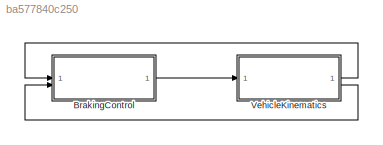
MODEL slx_ba577840c250
KIND model
CONFIG AbsTol = auto
CONFIG EnableMultiTasking = off
CONFIG FixedStep = 0.01
CONFIG MaxStep = auto
CONFIG MinStep = auto
CONFIG RelTol = 1e-3
CONFIG SampleTimeConstraint = Unconstrained
CONFIG SolverName = VariableStepAuto
CONFIG StartTime = 0.0
CONFIG StopTime = 5
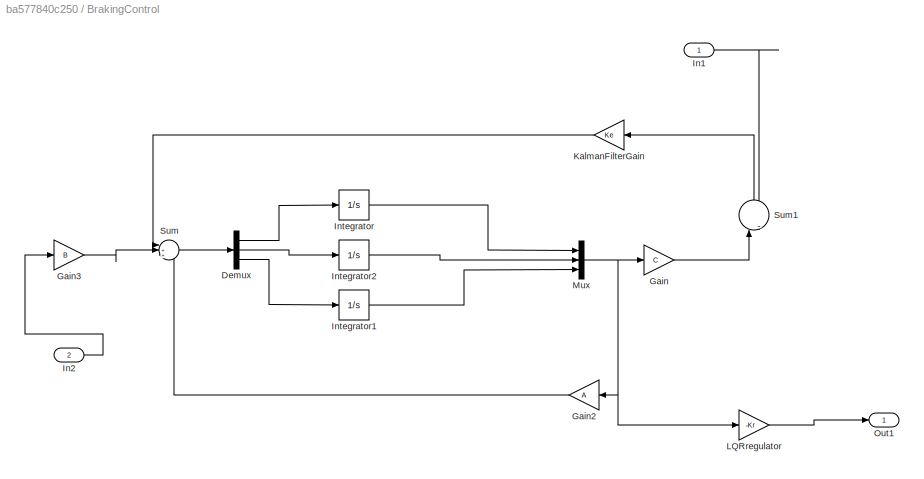
BLOCK [SubSystem] BrakingControl
BLOCK [Demux] BrakingControl/Demux
  Outputs = 3
BLOCK [Gain] BrakingControl/Gain
  Gain = C
  Multiplication = Matrix(K*u)
BLOCK [Gain] BrakingControl/Gain2
  Gain = A
  Multiplication = Matrix(K*u)
  NameLocation = top
BLOCK [Gain] BrakingControl/Gain3
  Gain = B
BLOCK [Inport] BrakingControl/In1
BLOCK [Inport] BrakingControl/In2
  Port = 2
BLOCK [Integrator] BrakingControl/Integrator
BLOCK [Integrator] BrakingControl/Integrator1
BLOCK [Integrator] BrakingControl/Integrator2
BLOCK [Gain] BrakingControl/KalmanFilterGain
  Gain = Ke
  NameLocation = top
BLOCK [Gain] BrakingControl/LQRregulator
  Gain = -Kr
  Multiplication = Matrix(K*u)
BLOCK [Mux] BrakingControl/Mux
  DisplayOption = bar
  Inputs = 3
BLOCK [Outport] BrakingControl/Out1
BLOCK [Sum] BrakingControl/Sum
  Inputs = |+++
BLOCK [Sum] BrakingControl/Sum1
  Inputs = |-+
  NameLocation = right
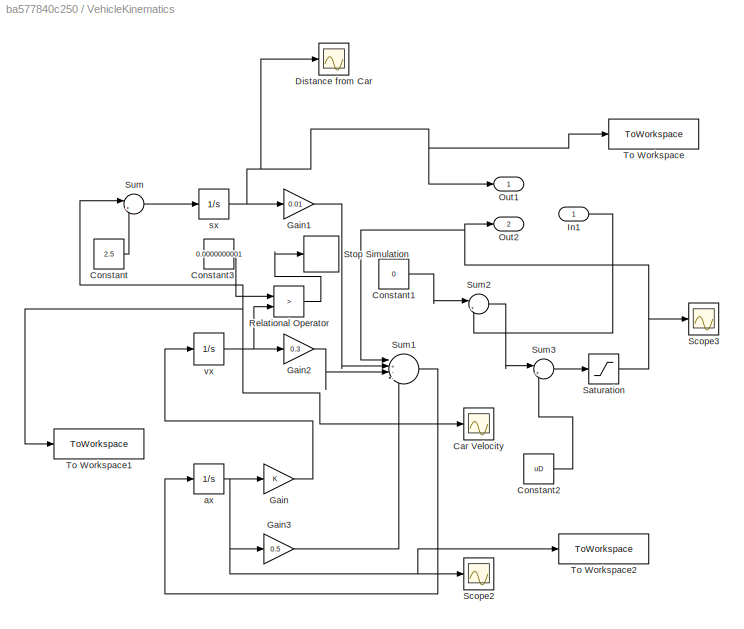
BLOCK [SubSystem] VehicleKinematics
BLOCK [Scope] VehicleKinematics/Car Velocity
  Floating = off
  NumInputPorts = 1
  ScopeSpecificationString = Simulink.scopes.TimeScopeBlockCfg('CurrentConfiguration', extmgr.ConfigurationSet(extmgr.Configuration('Core','General UI',true),extmgr.Configuration('Core','Source UI',true),extmgr.Configuration('Sources','WiredSimulink',true,'DataLoggingVariableName','ScopeData2'),extmgr.Configuration('Visuals','Time Domain',true,'SerializedDisplays',{struct('MinYLimReal','-6.25','MaxYLimReal','56.25','YLabelRea...<+1380ch>
BLOCK [Constant] VehicleKinematics/Constant
  Value = 2.5
BLOCK [Constant] VehicleKinematics/Constant1
  Value = 0
BLOCK [Constant] VehicleKinematics/Constant2
  Value = uD
BLOCK [Constant] VehicleKinematics/Constant3
  Value = 0.0000000001
BLOCK [Scope] VehicleKinematics/Distance from Car
  Floating = off
  NumInputPorts = 1
  ScopeSpecificationString = Simulink.scopes.TimeScopeBlockCfg('CurrentConfiguration', extmgr.ConfigurationSet(extmgr.Configuration('Core','General UI',true),extmgr.Configuration('Core','Source UI',true),extmgr.Configuration('Sources','WiredSimulink',true,'DataLoggingVariableName','ScopeData1'),extmgr.Configuration('Visuals','Time Domain',true,'SerializedDisplays',{struct('MinYLimReal','-50.59971','MaxYLimReal','17.39741','YL...<+1394ch>
BLOCK [Gain] VehicleKinematics/Gain
BLOCK [Gain] VehicleKinematics/Gain1
  Gain = 0.01
BLOCK [Gain] VehicleKinematics/Gain2
  Gain = 0.3
BLOCK [Gain] VehicleKinematics/Gain3
  Gain = 0.5
BLOCK [Inport] VehicleKinematics/In1
BLOCK [Outport] VehicleKinematics/Out1
BLOCK [Outport] VehicleKinematics/Out2
  Port = 2
BLOCK [RelationalOperator] VehicleKinematics/Relational Operator
  InputSameDT = off
  Operator = >
  OutDataTypeStr = boolean
  RndMeth = Simplest
BLOCK [Saturate] VehicleKinematics/Saturation
  LowerLimit = -150
  UpperLimit = 0
BLOCK [Scope] VehicleKinematics/Scope2
  Floating = off
  NumInputPorts = 1
  ScopeSpecificationString = Simulink.scopes.TimeScopeBlockCfg('CurrentConfiguration', extmgr.ConfigurationSet(extmgr.Configuration('Core','General UI',true),extmgr.Configuration('Core','Source UI',true),extmgr.Configuration('Sources','WiredSimulink',true,'DataLoggingVariableName','ScopeData3'),extmgr.Configuration('Visuals','Time Domain',true,'SerializedDisplays',{struct('MinYLimReal','-43.53248','MaxYLimReal','4.83694','YLa...<+1365ch>
BLOCK [Scope] VehicleKinematics/Scope3
  Floating = off
  NumInputPorts = 1
  ScopeSpecificationString = Simulink.scopes.TimeScopeBlockCfg('CurrentConfiguration', extmgr.ConfigurationSet(extmgr.Configuration('Core','General UI',true),extmgr.Configuration('Core','Source UI',true),extmgr.Configuration('Sources','WiredSimulink',true,'DataLoggingVariableName','ScopeData4'),extmgr.Configuration('Visuals','Time Domain',true,'SerializedDisplays',{struct('MinYLimReal','-168.75','MaxYLimReal','18.75','YLabelR...<+1395ch>
BLOCK [Stop] VehicleKinematics/Stop Simulation
BLOCK [Sum] VehicleKinematics/Sum
  Inputs = |+-
BLOCK [Sum] VehicleKinematics/Sum1
  Inputs = |+---
BLOCK [Sum] VehicleKinematics/Sum2
  Inputs = |++
BLOCK [Sum] VehicleKinematics/Sum3
  Inputs = |++
BLOCK [ToWorkspace] VehicleKinematics/To Workspace
  FixptAsFi = on
  MaxDataPoints = inf
  SampleTime = -1
  SaveFormat = Timeseries
  VariableName = sx1
BLOCK [ToWorkspace] VehicleKinematics/To Workspace1
  FixptAsFi = on
  MaxDataPoints = inf
  SampleTime = -1
  SaveFormat = Timeseries
  VariableName = vx1
BLOCK [ToWorkspace] VehicleKinematics/To Workspace2
  FixptAsFi = on
  MaxDataPoints = inf
  SampleTime = -1
  SaveFormat = Timeseries
  VariableName = ax1
BLOCK [Integrator] VehicleKinematics/ax
BLOCK [Integrator] VehicleKinematics/sx
  InitialCondition = -43.8
BLOCK [Integrator] VehicleKinematics/vx
  InitialCondition = 50
LINE BrakingControl/Demux:1 -> BrakingControl/Integrator:1
LINE BrakingControl/Demux:2 -> BrakingControl/Integrator2:1
LINE BrakingControl/Demux:3 -> BrakingControl/Integrator1:1
LINE BrakingControl/Gain2:1 -> BrakingControl/Sum:3
LINE BrakingControl/Gain3:1 -> BrakingControl/Sum:2
LINE BrakingControl/Gain:1 -> BrakingControl/Sum1:1
LINE BrakingControl/In1:1 -> BrakingControl/Sum1:2
LINE BrakingControl/In2:1 -> BrakingControl/Gain3:1
LINE BrakingControl/Integrator1:1 -> BrakingControl/Mux:3
LINE BrakingControl/Integrator2:1 -> BrakingControl/Mux:2
LINE BrakingControl/Integrator:1 -> BrakingControl/Mux:1
LINE BrakingControl/KalmanFilterGain:1 -> BrakingControl/Sum:1
LINE BrakingControl/LQRregulator:1 -> BrakingControl/Out1:1
NET BrakingControl/Mux:1 -> BrakingControl/Gain2:1, BrakingControl/Gain:1, BrakingControl/LQRregulator:1
LINE BrakingControl/Sum1:1 -> BrakingControl/KalmanFilterGain:1
LINE BrakingControl/Sum:1 -> BrakingControl/Demux:1
LINE BrakingControl:1 -> VehicleKinematics:1
LINE VehicleKinematics/Constant1:1 -> VehicleKinematics/Sum2:1
LINE VehicleKinematics/Constant2:1 -> VehicleKinematics/Sum3:2
LINE VehicleKinematics/Constant3:1 -> VehicleKinematics/Relational Operator:1
LINE VehicleKinematics/Constant:1 -> VehicleKinematics/Sum:2
LINE VehicleKinematics/Gain1:1 -> VehicleKinematics/Sum1:2
LINE VehicleKinematics/Gain2:1 -> VehicleKinematics/Sum1:3
LINE VehicleKinematics/Gain3:1 -> VehicleKinematics/Sum1:4
LINE VehicleKinematics/Gain:1 -> VehicleKinematics/vx:1
LINE VehicleKinematics/In1:1 -> VehicleKinematics/Sum2:2
LINE VehicleKinematics/Relational Operator:1 -> VehicleKinematics/Stop Simulation:1
NET VehicleKinematics/Saturation:1 -> VehicleKinematics/Out2:1, VehicleKinematics/Scope3:1, VehicleKinematics/Sum1:1
LINE VehicleKinematics/Sum1:1 -> VehicleKinematics/ax:1
LINE VehicleKinematics/Sum2:1 -> VehicleKinematics/Sum3:1
LINE VehicleKinematics/Sum3:1 -> VehicleKinematics/Saturation:1
LINE VehicleKinematics/Sum:1 -> VehicleKinematics/sx:1
NET VehicleKinematics/ax:1 -> VehicleKinematics/Gain3:1, VehicleKinematics/Gain:1, VehicleKinematics/Scope2:1, VehicleKinematics/To Workspace2:1
NET VehicleKinematics/sx:1 -> VehicleKinematics/Distance from Car:1, VehicleKinematics/Gain1:1, VehicleKinematics/Out1:1, VehicleKinematics/To Workspace:1
NET VehicleKinematics/vx:1 -> VehicleKinematics/Car Velocity:1, VehicleKinematics/Gain2:1, VehicleKinematics/Relational Operator:2, VehicleKinematics/Sum:1, VehicleKinematics/To Workspace1:1
LINE VehicleKinematics:1 -> BrakingControl:1
LINE VehicleKinematics:2 -> BrakingControl:2
note: NET lines group one-source signal fan-out (src -> all destinations, sorted); 1:1 wires keep LINE
